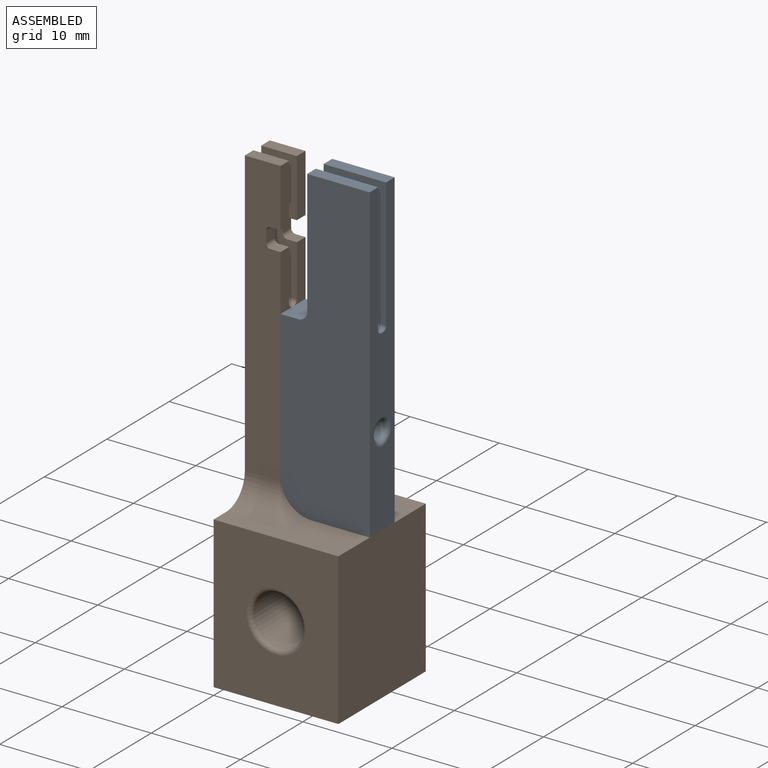
[diagram: assembled view]
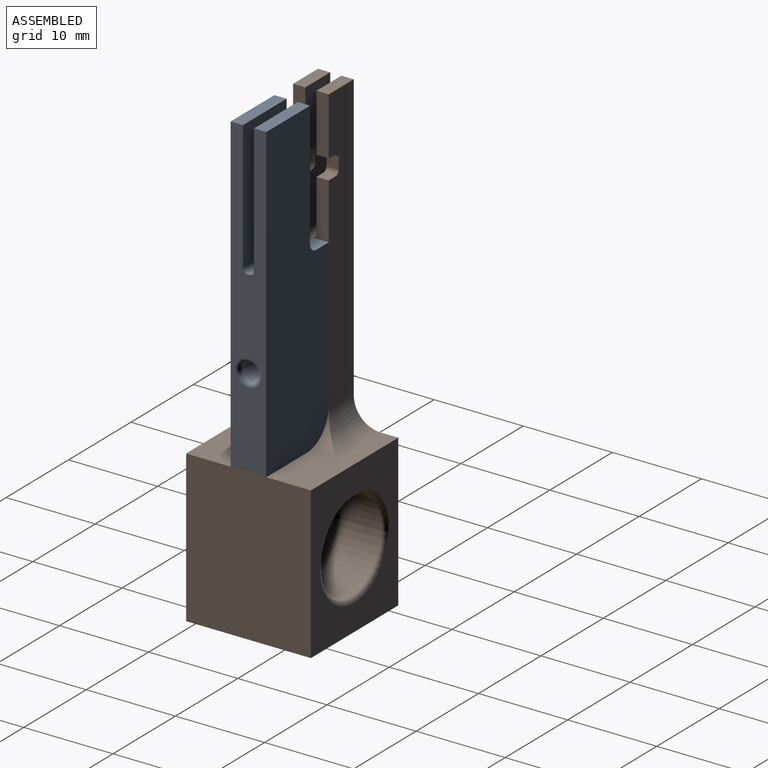
[diagram: assembled view, second angle]
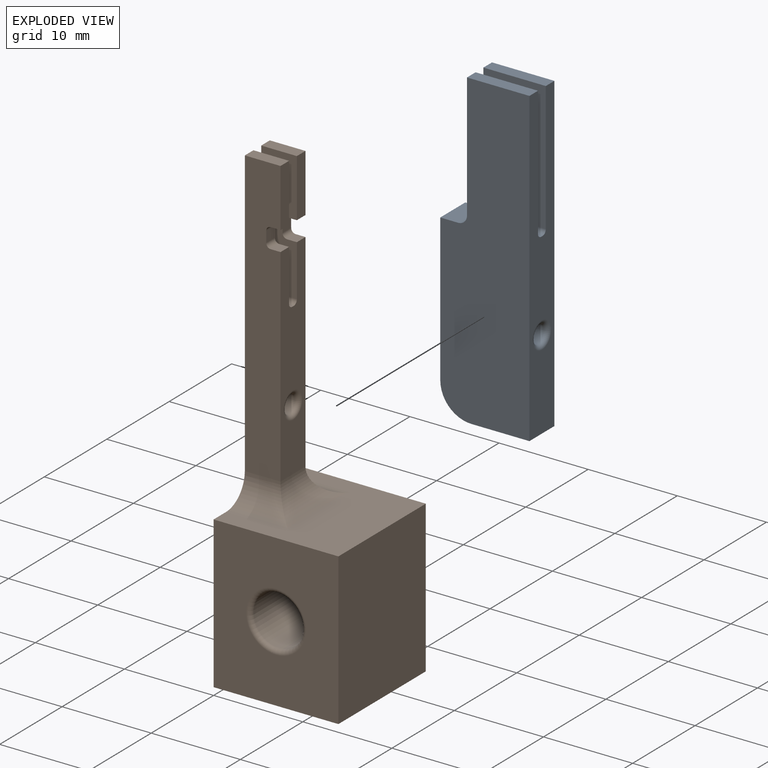
[diagram: exploded view]
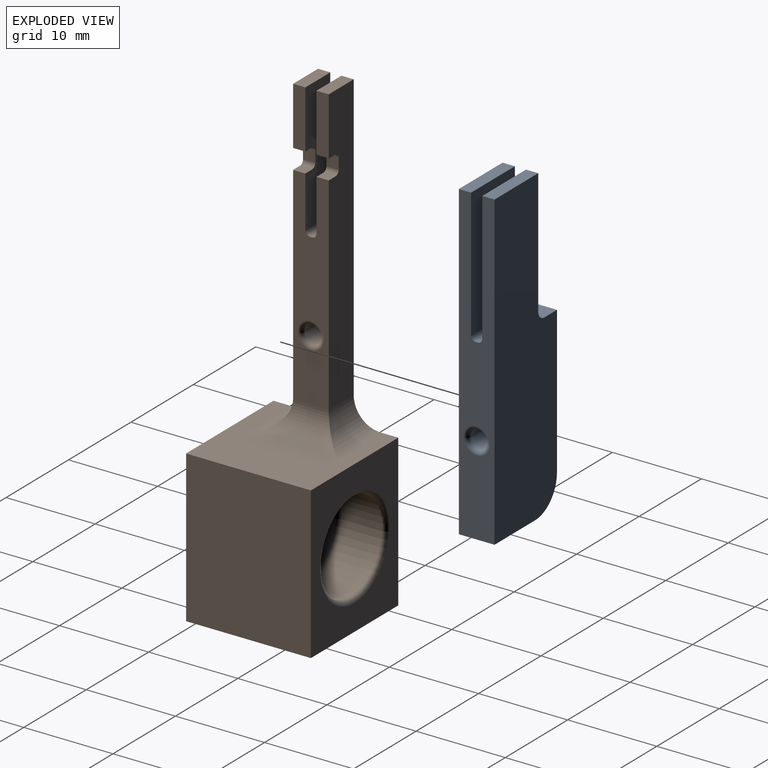
[diagram: exploded view, second angle]
ASSEMBLY  parts=2 mates=3
PART A: 20 faces, bbox 4x10x35 mm
  f0: plane 35x10mm, normal (1,0,0), area 302.6mm2, adj f3,f4,f8,f9,f10,f12,f17,f19
  f1: plane 14.5x7.13mm, normal (-1,0,0), area 101.5mm2, adj f3,f10,f12,f13,f17
  f2: plane 14.5x7.13mm, normal (1,0,0), area 101.5mm2, adj f5,f10,f11,f14,f18
  f3: plane 7x1.38mm, normal (0,0,1), area 9.6mm2, adj f0,f1,f10,f12
  f4: plane 10x4mm, normal (0,0,1), area 10mm2, adj f0,f6,f9,f10,f13,f14,f17,f18
  f5: plane 7x1.38mm, normal (0,0,1), area 9.6mm2, adj f2,f6,f10,f11
  f6: plane 35x10mm, normal (-1,0,0), area 302.6mm2, adj f4,f5,f8,f9,f10,f11,f18,f19
  f7: cylinder r=1mm len=9mm, axis (0,1,0), area 56.5mm2, adj f15,f16
  f8: plane 6.5x4mm, normal (0,0,-1), area 26mm2, adj f0,f6,f10,f19
  f9: plane 16.5x4mm, normal (0,-1,0), area 58.9mm2, adj f0,f4,f6,f16,f19
  f10: plane 35x4mm, normal (0,1,0), area 114.3mm2, adj f0,f1,f2,f3,f4,f5,f6,f8
  f11: plane 14x1.38mm, normal (0,-1,0), area 19.3mm2, adj f2,f5,f6,f18
  f12: plane 14x1.38mm, normal (0,-1,0), area 19.3mm2, adj f0,f1,f3,f17
  f13: cylinder r=0.5mm len=8mm, axis (0,-1,0), area 5.9mm2, adj f1,f4,f10,f17
  f14: cylinder r=0.5mm len=8mm, axis (0,1,0), area 5.9mm2, adj f2,f4,f10,f18
  f15: torus R=1.5mm, axis (0,-1,0), area 5.8mm2, adj f7,f10
  f16: torus R=1.5mm, axis (0,-1,0), area 5.8mm2, adj f7,f9
  f17: cylinder r=1mm len=1.88mm, axis (1,0,0), area 2.4mm2, adj f0,f1,f4,f12,f13
  f18: cylinder r=1mm len=1.88mm, axis (1,0,0), area 2.4mm2, adj f2,f4,f6,f11,f14
  f19: cylinder r=3.5mm len=4mm, axis (-1,0,0), area 22mm2, adj f0,f6,f8,f9
PART B: 41 faces, bbox 14x14x52 mm
  f0: cylinder r=2.85mm len=7.5mm, axis (0,1,0), area 134.3mm2, adj f30,f32
  f1: plane 6.5x1.38mm, normal (1,0,0), area 8.9mm2, adj f14,f15,f20,f22
  f2: plane 4x1.38mm, normal (0,0,1), area 5.5mm2, adj f6,f8,f19,f21
  f3: plane 1.38x1.1mm, normal (0,0,1), area 1.5mm2, adj f7,f19,f21,f33
  f4: plane 1.38x1.23mm, normal (1,0,0), area 1.7mm2, adj f19,f21,f33,f34
  f5: plane 1.38x1.1mm, normal (0,0,-1), area 1.5mm2, adj f8,f19,f21,f34
  f6: plane 52x14mm, normal (-1,0,0), area 356.2mm2, adj f2,f9,f11,f15,f16,f17,f19,f20
  f7: plane 23.27x4mm, normal (1,0,0), area 78.3mm2, adj f3,f12,f19,f20,f21,f22,f23,f25
  f8: plane 6.5x1.38mm, normal (1,0,0), area 8.9mm2, adj f2,f5,f19,f21
  f9: plane 14x14mm, normal (0,0,-1), area 196mm2, adj f6,f10,f16,f17
  f10: plane 17x14mm, normal (1,0,0), area 238mm2, adj f9,f11,f16,f17
  f11: plane 14x14mm, normal (0,0,1), area 126mm2, adj f6,f10,f16,f17,f24,f25,f26
  f12: plane 1.38x1.1mm, normal (0,0,1), area 1.5mm2, adj f7,f20,f22,f39
  f13: plane 1.38x1.23mm, normal (1,0,0), area 1.7mm2, adj f20,f22,f39,f40
  f14: plane 1.38x1.1mm, normal (0,0,-1), area 1.5mm2, adj f1,f20,f22,f40
  f15: plane 4x1.38mm, normal (0,0,1), area 5.5mm2, adj f1,f6,f20,f22
  f16: plane 17x14mm, normal (0,-1,0), area 202.7mm2, adj f6,f9,f10,f11,f32
  f17: plane 17x14mm, normal (0,1,0), area 139.5mm2, adj f6,f9,f10,f11,f29
  f18: cylinder r=1mm len=3mm, axis (1,0,0), area 18.8mm2, adj f37,f38
  f19: plane 32x4mm, normal (0,1,0), area 124.5mm2, adj f2,f3,f4,f5,f6,f7,f8,f26
  f20: plane 32x4mm, normal (0,-1,0), area 124.5mm2, adj f1,f6,f7,f12,f13,f14,f15,f24
  f21: plane 14.5x4mm, normal (0,-1,0), area 54.5mm2, adj f2,f3,f4,f5,f6,f7,f8,f33
  f22: plane 14.5x4mm, normal (0,1,0), area 54.5mm2, adj f1,f6,f7,f12,f13,f14,f15,f35
  f23: plane 4x0.25mm, normal (0,0,1), area 1mm2, adj f6,f7,f35,f36
  f24: cylinder r=3mm len=7mm, axis (1,0,0), area 24mm2, adj f6,f11,f20,f25
  f25: cylinder r=3mm len=10mm, axis (0,1,0), area 29.1mm2, adj f7,f11,f24,f26
  f26: cylinder r=3mm len=7mm, axis (1,0,0), area 24mm2, adj f6,f11,f19,f25
  f27: cylinder r=5.1mm len=10.2mm, axis (0,1,0), area 144.2mm2, adj f29,f31
  f28: plane 9.2x9.2mm, normal (0,1,0), area 31.2mm2, adj f30,f31
  f29: torus R=5.6mm, axis (0,-1,0), area 26.1mm2, adj f17,f27
  f30: torus R=3.35mm, axis (0,1,0), area 15mm2, adj f0,f28
  f31: torus R=4.6mm, axis (0,1,0), area 24.3mm2, adj f27,f28
  f32: torus R=3.35mm, axis (0,-1,0), area 15mm2, adj f0,f16
  f33: cylinder r=0.5mm len=1.38mm, axis (0,1,0), area 1.1mm2, adj f3,f4,f19,f21
  f34: cylinder r=0.5mm len=1.38mm, axis (0,-1,0), area 1.1mm2, adj f4,f5,f19,f21
  f35: cylinder r=0.5mm len=4mm, axis (-1,0,0), area 3.1mm2, adj f6,f7,f22,f23
  f36: cylinder r=0.5mm len=4mm, axis (1,0,0), area 3.1mm2, adj f6,f7,f21,f23
  f37: torus R=1.5mm, axis (-1,0,0), area 5.8mm2, adj f7,f18
  f38: torus R=1.5mm, axis (-1,0,0), area 5.8mm2, adj f6,f18
  f39: cylinder r=0.5mm len=1.38mm, axis (0,1,0), area 1.1mm2, adj f12,f13,f20,f22
  f40: cylinder r=0.5mm len=1.38mm, axis (0,-1,0), area 1.1mm2, adj f13,f14,f20,f22
PLACE A rot(axis=(0,0,-1),90deg) t=(14,7,17)mm
PLACE B t=(0,7,0)mm
MATE planar A.f6 <-> B.f19  axis (0,1,0) through (9.56,9,33.16)mm
MATE planar A.f8 <-> B.f11  axis (0,0,-1) through (10.75,7,17)mm
MATE planar A.f9 <-> B.f7  axis (-1,0,0) through (4,7,37)mm
